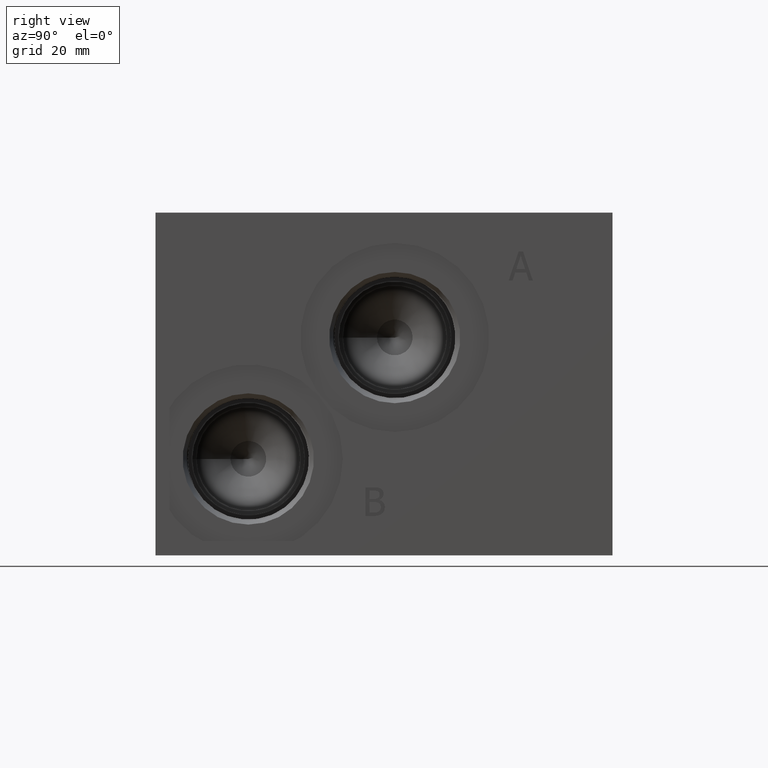
[diagram: clean part render]
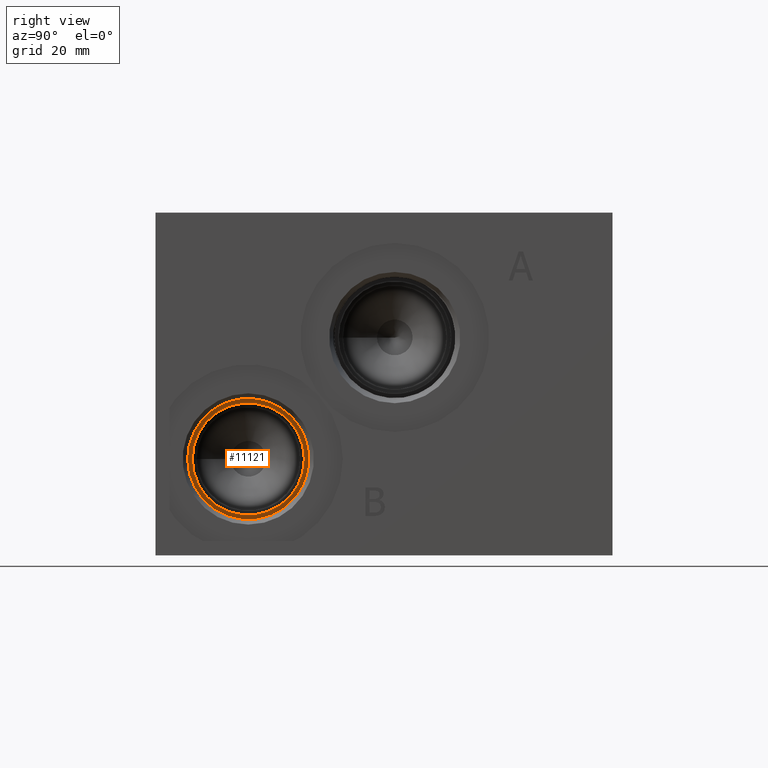
[diagram: same view with one face highlighted and labeled with its STEP entity id]
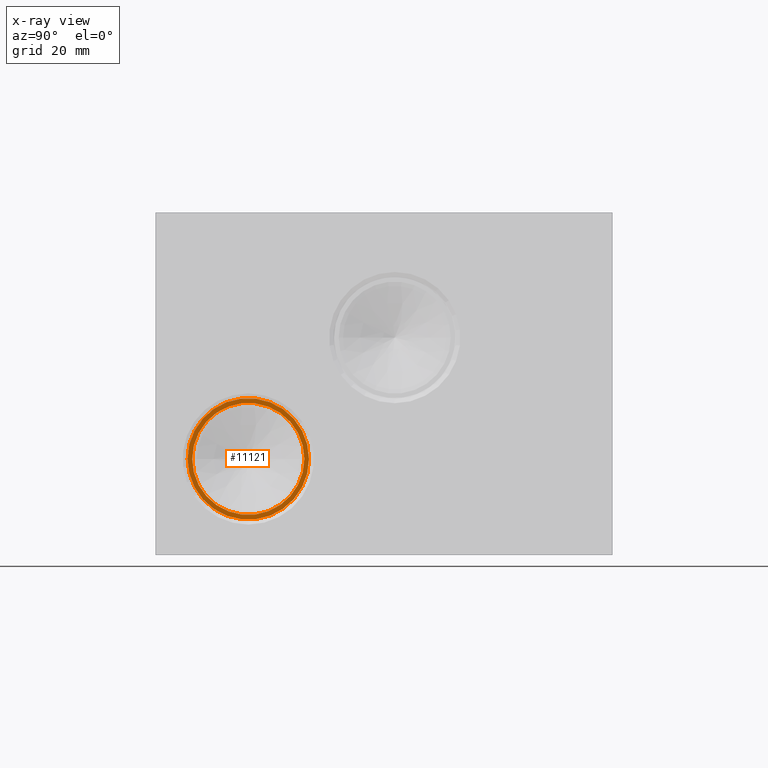
[diagram: x-ray of the same camera — body ghosted, the highlighted face saturated]
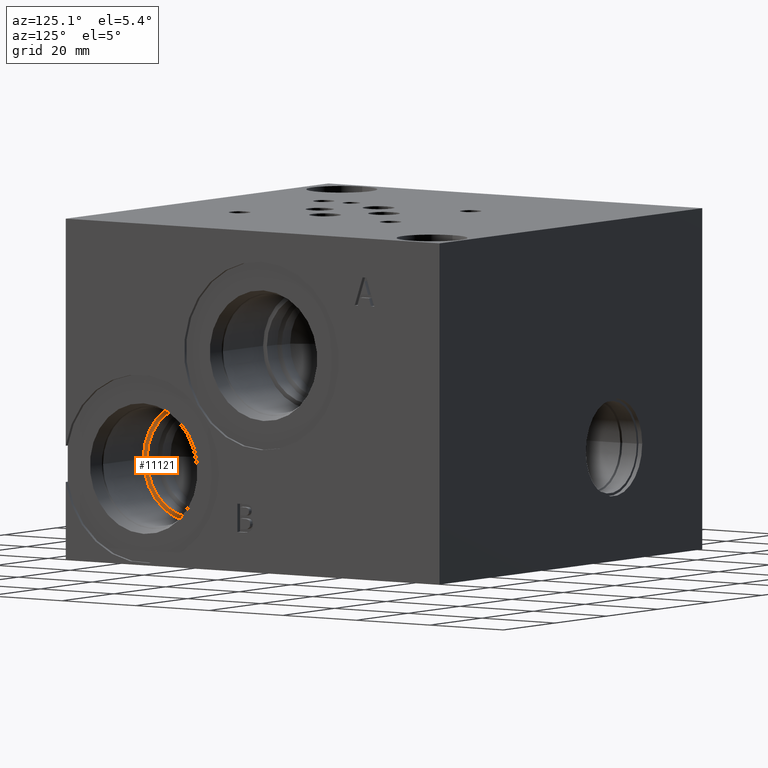
[diagram: same view with one face highlighted and labeled with its STEP entity id]
A machine part, right view. The second image highlights one B-rep face of the part: STEP entity #11121.
The next image is the same camera in x-ray: the body ghosted, the highlighted face saturated — about 0% of this face is hidden behind the body in this view.
A second angle (auxiliary view) of the same face is appended — the face is thin or edge-on in the first view.
In plain terms, the highlighted planar face has unit normal (1, 0, 0).
Its self-contained STEP definition (entity closure, byte-faithful):
#185=CIRCLE('',#11634,13.5001);
#186=CIRCLE('',#11635,13.5001);
#187=CIRCLE('',#11636,12.4587);
#356=FACE_BOUND('',#1963,.T.);
#1340=FACE_OUTER_BOUND('',#1962,.T.);
#1962=EDGE_LOOP('',(#9465,#9466));
#1963=EDGE_LOOP('',(#9467));
#5073=VERTEX_POINT('',#18932);
#5074=VERTEX_POINT('',#18933);
#5075=VERTEX_POINT('',#18936);
#6578=EDGE_CURVE('',#5073,#5074,#185,.T.);
#6579=EDGE_CURVE('',#5074,#5073,#186,.T.);
#6580=EDGE_CURVE('',#5075,#5075,#187,.T.);
#9465=ORIENTED_EDGE('',*,*,#6578,.T.);
#9466=ORIENTED_EDGE('',*,*,#6579,.T.);
#9467=ORIENTED_EDGE('',*,*,#6580,.F.);
#10166=PLANE('',#11633);
#11121=ADVANCED_FACE('',(#1340,#356),#10166,.T.);
#11633=AXIS2_PLACEMENT_3D('',#18931,#13658,#13659);
#11634=AXIS2_PLACEMENT_3D('',#18934,#13660,#13661);
#11635=AXIS2_PLACEMENT_3D('',#18935,#13662,#13663);
#11636=AXIS2_PLACEMENT_3D('',#18937,#13664,#13665);
#13658=DIRECTION('center_axis',(1.,0.,0.));
#13659=DIRECTION('ref_axis',(0.,1.,0.));
#13660=DIRECTION('center_axis',(1.,0.,0.));
#13661=DIRECTION('ref_axis',(0.,1.,0.));
#13662=DIRECTION('center_axis',(1.,0.,0.));
#13663=DIRECTION('ref_axis',(0.,1.,0.));
#13664=DIRECTION('center_axis',(1.,0.,0.));
#13665=DIRECTION('ref_axis',(0.,1.,0.));
#18931=CARTESIAN_POINT('Origin',(81.7626,20.6248,21.43125));
#18932=CARTESIAN_POINT('',(81.7626,34.1249,21.43125));
#18933=CARTESIAN_POINT('',(81.7626,7.1247,21.43125));
#18934=CARTESIAN_POINT('Origin',(81.7626,20.6248,21.43125));
#18935=CARTESIAN_POINT('Origin',(81.7626,20.6248,21.43125));
#18936=CARTESIAN_POINT('',(81.7626,8.1661,21.43125));
#18937=CARTESIAN_POINT('Origin',(81.7626,20.6248,21.43125));